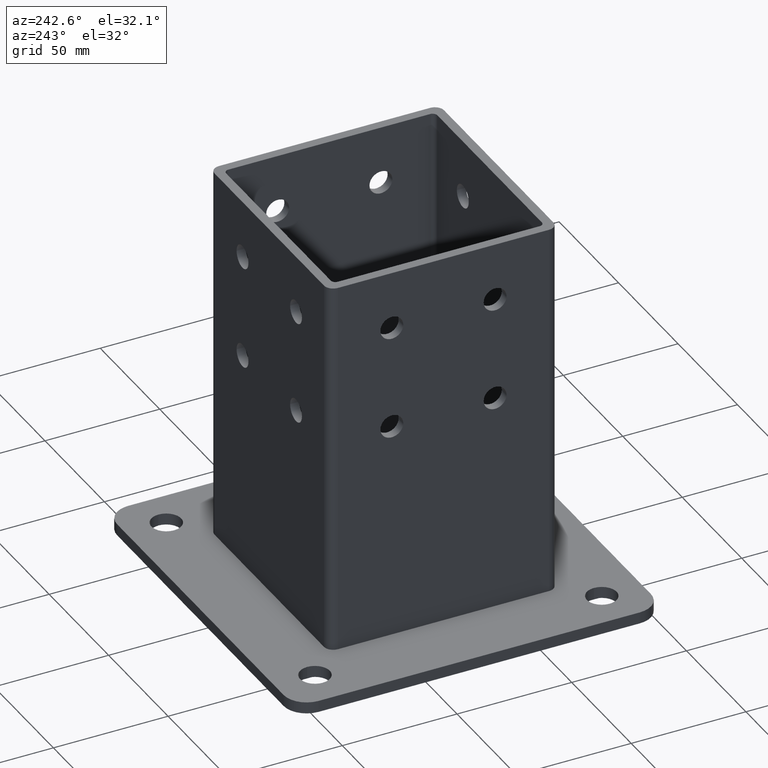
[diagram: clean part render]
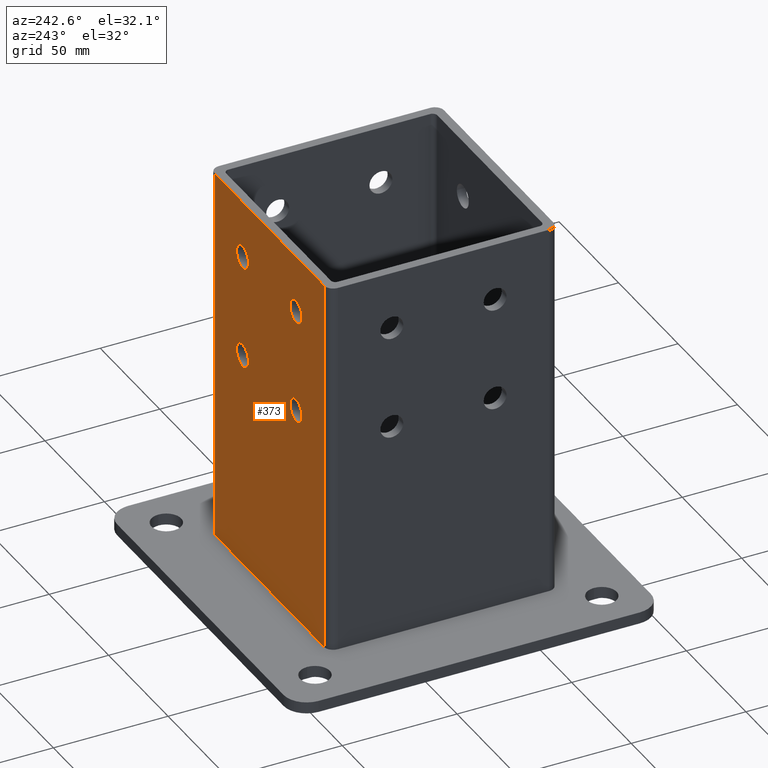
[diagram: same view with one face highlighted and labeled with its STEP entity id]
A machine part, auxiliary view. The second image highlights one B-rep face of the part: STEP entity #373.
In plain terms, the highlighted planar face has unit normal (0, 1, 0).
Its self-contained STEP definition (entity closure, byte-faithful):
#7=CARTESIAN_POINT('',(46.000017688286235,129.999993541799140,5.0));
#8=VERTEX_POINT('',#7);
#9=CARTESIAN_POINT('',(46.000017688286235,129.999993541799140,170.000004028592830));
#10=VERTEX_POINT('',#9);
#11=CARTESIAN_POINT('',(46.000017688286235,129.999993541799140,5.0));
#12=DIRECTION('',(0.0,0.0,1.0));
#13=VECTOR('',#12,165.000004028592830);
#14=LINE('',#11,#13);
#15=EDGE_CURVE('',#8,#10,#14,.T.);
#59=CARTESIAN_POINT('',(-45.999995226736345,129.999993541799140,170.000004028592830));
#60=VERTEX_POINT('',#59);
#68=CARTESIAN_POINT('',(-45.999995226736345,129.999993541799140,5.0));
#69=VERTEX_POINT('',#68);
#70=CARTESIAN_POINT('',(-45.999995226736345,129.999993541799140,5.0));
#71=DIRECTION('',(0.0,0.0,1.0));
#72=VECTOR('',#71,165.000004028592830);
#73=LINE('',#70,#72);
#74=EDGE_CURVE('',#69,#60,#73,.T.);
#272=CARTESIAN_POINT('',(50.000017688286235,129.999993541799140,5.0));
#273=DIRECTION('',(0.0,1.0,0.0));
#274=DIRECTION('',(-1.0,0.0,0.0));
#275=AXIS2_PLACEMENT_3D('',#272,#273,#274);
#276=PLANE('',#275);
#277=ORIENTED_EDGE('',*,*,#74,.T.);
#278=CARTESIAN_POINT('',(46.000017688286235,129.999993541799140,170.000004028592830));
#279=DIRECTION('',(-1.0,0.0,0.0));
#280=VECTOR('',#279,92.000012915022580);
#281=LINE('',#278,#280);
#282=EDGE_CURVE('',#10,#60,#281,.T.);
#283=ORIENTED_EDGE('',*,*,#282,.F.);
#284=ORIENTED_EDGE('',*,*,#15,.F.);
#285=CARTESIAN_POINT('',(46.000017688286235,129.999993541799140,5.0));
#286=DIRECTION('',(-1.0,0.0,0.0));
#287=VECTOR('',#286,92.000012915022580);
#288=LINE('',#285,#287);
#289=EDGE_CURVE('',#8,#69,#288,.T.);
#290=ORIENTED_EDGE('',*,*,#289,.T.);
#291=EDGE_LOOP('',(#277,#283,#284,#290));
#292=FACE_OUTER_BOUND('',#291,.T.);
#293=CARTESIAN_POINT('',(-17.500003509546865,129.999993541799140,145.000014388849020));
#294=VERTEX_POINT('',#293);
#295=CARTESIAN_POINT('',(-27.500003509506662,129.999993541799140,145.000014388849020));
#296=VERTEX_POINT('',#295);
#297=CARTESIAN_POINT('',(-22.500003509526763,129.999993541799140,145.000014388849020));
#298=DIRECTION('',(0.0,-1.0,0.0));
#299=DIRECTION('',(1.0,0.0,0.0));
#300=AXIS2_PLACEMENT_3D('',#297,#298,#299);
#301=CIRCLE('',#300,4.999999999979899);
#302=EDGE_CURVE('',#294,#296,#301,.T.);
#303=ORIENTED_EDGE('',*,*,#302,.T.);
#304=CARTESIAN_POINT('',(-22.500003509526763,129.999993541799140,145.000014388849020));
#305=DIRECTION('',(0.0,-1.0,0.0));
#306=DIRECTION('',(1.0,0.0,0.0));
#307=AXIS2_PLACEMENT_3D('',#304,#305,#306);
#308=CIRCLE('',#307,4.999999999979899);
#309=EDGE_CURVE('',#296,#294,#308,.T.);
#310=ORIENTED_EDGE('',*,*,#309,.T.);
#311=EDGE_LOOP('',(#303,#310));
#312=FACE_BOUND('',#311,.T.);
#313=CARTESIAN_POINT('',(27.499996490273055,129.999993541799140,145.000008071537930));
#314=VERTEX_POINT('',#313);
#315=CARTESIAN_POINT('',(17.499996490313258,129.999993541799140,145.000008071537930));
#316=VERTEX_POINT('',#315);
#317=CARTESIAN_POINT('',(22.499996490293157,129.999993541799140,145.000008071537930));
#318=DIRECTION('',(0.0,-1.0,0.0));
#319=DIRECTION('',(1.0,0.0,0.0));
#320=AXIS2_PLACEMENT_3D('',#317,#318,#319);
#321=CIRCLE('',#320,4.999999999979899);
#322=EDGE_CURVE('',#314,#316,#321,.T.);
#323=ORIENTED_EDGE('',*,*,#322,.T.);
#324=CARTESIAN_POINT('',(22.499996490293157,129.999993541799140,145.000008071537930));
#325=DIRECTION('',(0.0,-1.0,0.0));
#326=DIRECTION('',(1.0,0.0,0.0));
#327=AXIS2_PLACEMENT_3D('',#324,#325,#326);
#328=CIRCLE('',#327,4.999999999979899);
#329=EDGE_CURVE('',#316,#314,#328,.T.);
#330=ORIENTED_EDGE('',*,*,#329,.T.);
#331=EDGE_LOOP('',(#323,#330));
#332=FACE_BOUND('',#331,.T.);
#333=CARTESIAN_POINT('',(-17.500013336475227,129.999993541799140,100.000014389029560));
#334=VERTEX_POINT('',#333);
#335=CARTESIAN_POINT('',(-27.500013336435025,129.999993541799140,100.000014389029560));
#336=VERTEX_POINT('',#335);
#337=CARTESIAN_POINT('',(-22.500013336455126,129.999993541799140,100.000014389029560));
#338=DIRECTION('',(0.0,-1.0,0.0));
#339=DIRECTION('',(1.0,0.0,0.0));
#340=AXIS2_PLACEMENT_3D('',#337,#338,#339);
#341=CIRCLE('',#340,4.999999999979899);
#342=EDGE_CURVE('',#334,#336,#341,.T.);
#343=ORIENTED_EDGE('',*,*,#342,.T.);
#344=CARTESIAN_POINT('',(-22.500013336455126,129.999993541799140,100.000014389029560));
#345=DIRECTION('',(0.0,-1.0,0.0));
#346=DIRECTION('',(1.0,0.0,0.0));
#347=AXIS2_PLACEMENT_3D('',#344,#345,#346);
#348=CIRCLE('',#347,4.999999999979899);
#349=EDGE_CURVE('',#336,#334,#348,.T.);
#350=ORIENTED_EDGE('',*,*,#349,.T.);
#351=EDGE_LOOP('',(#343,#350));
#352=FACE_BOUND('',#351,.T.);
#353=CARTESIAN_POINT('',(27.499986663344693,129.999993541799140,100.000008071718920));
#354=VERTEX_POINT('',#353);
#355=CARTESIAN_POINT('',(17.499986663384895,129.999993541799140,100.000008071718920));
#356=VERTEX_POINT('',#355);
#357=CARTESIAN_POINT('',(22.499986663364794,129.999993541799140,100.000008071718920));
#358=DIRECTION('',(0.0,-1.0,0.0));
#359=DIRECTION('',(1.0,0.0,0.0));
#360=AXIS2_PLACEMENT_3D('',#357,#358,#359);
#361=CIRCLE('',#360,4.999999999979899);
#362=EDGE_CURVE('',#354,#356,#361,.T.);
#363=ORIENTED_EDGE('',*,*,#362,.T.);
#364=CARTESIAN_POINT('',(22.499986663364794,129.999993541799140,100.000008071718920));
#365=DIRECTION('',(0.0,-1.0,0.0));
#366=DIRECTION('',(1.0,0.0,0.0));
#367=AXIS2_PLACEMENT_3D('',#364,#365,#366);
#368=CIRCLE('',#367,4.999999999979899);
#369=EDGE_CURVE('',#356,#354,#368,.T.);
#370=ORIENTED_EDGE('',*,*,#369,.T.);
#371=EDGE_LOOP('',(#363,#370));
#372=FACE_BOUND('',#371,.T.);
#373=ADVANCED_FACE('',(#292,#312,#332,#352,#372),#276,.T.);